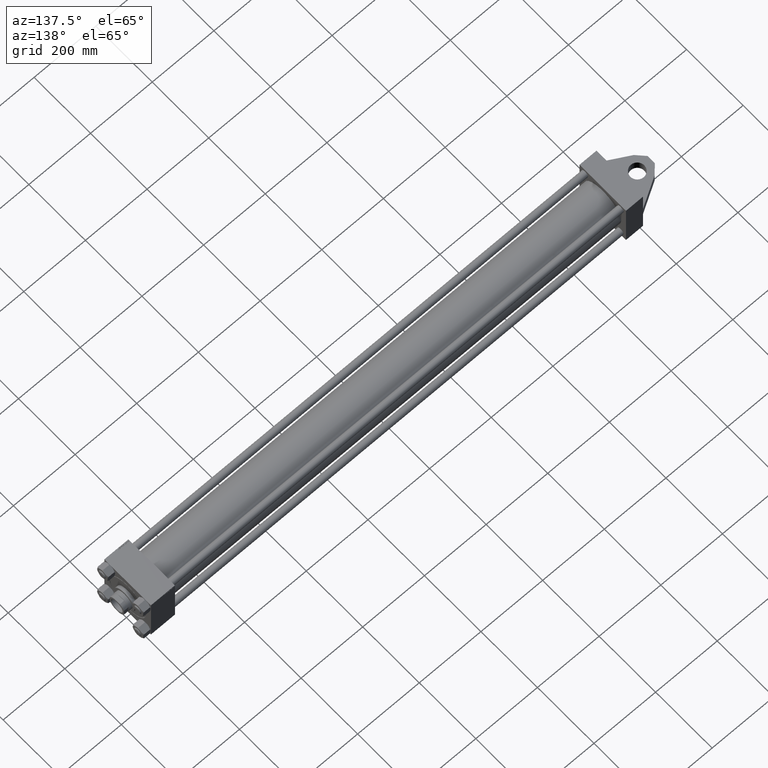
[diagram: clean part render]
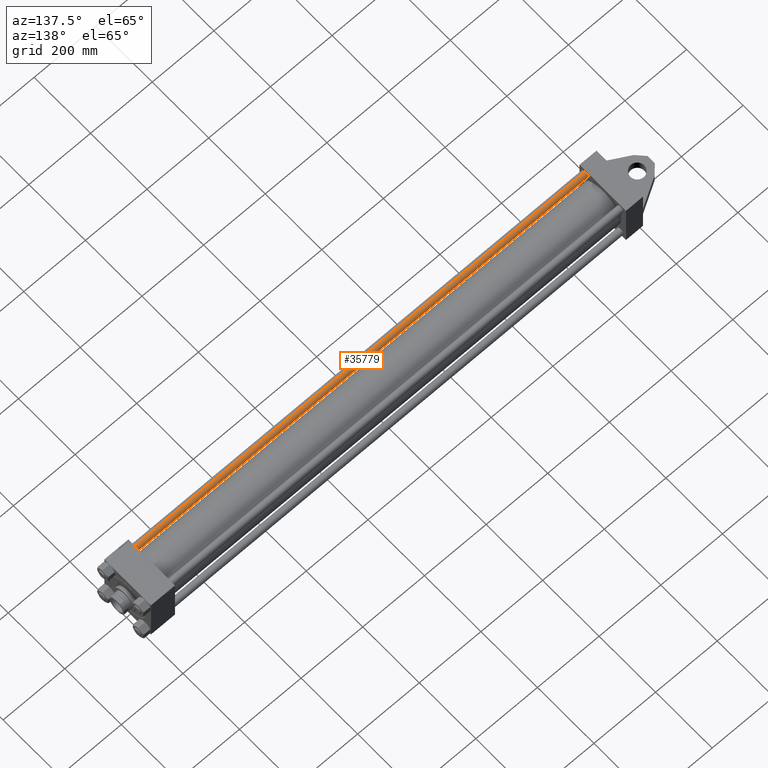
[diagram: same view with one face highlighted and labeled with its STEP entity id]
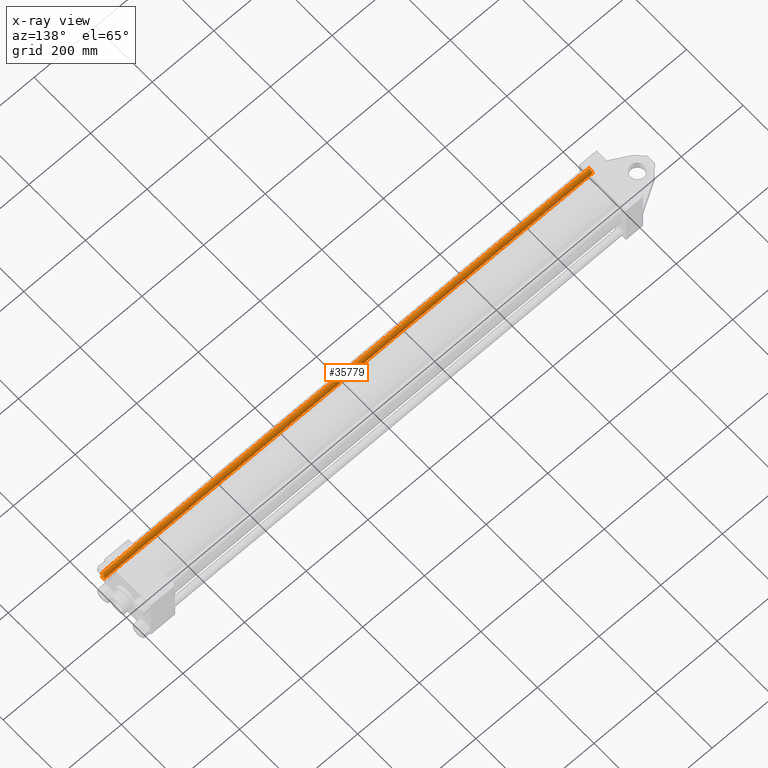
[diagram: x-ray of the same camera — body ghosted, the highlighted face saturated]
A machine part, auxiliary view. The second image highlights one B-rep face of the part: STEP entity #35779.
The next image is the same camera in x-ray: the body ghosted, the highlighted face saturated — about 0% of this face is hidden behind the body in this view.
In plain terms, the highlighted cylindrical surface (edge-blend (fillet) strip) has radius 11 mm, axis along (1, 0, 0).
Its self-contained STEP definition (entity closure, byte-faithful):
#945 = CARTESIAN_POINT ( 'NONE',  ( -11.00000000000000000, 0.000000000000000000, 0.4999999999999449329 ) ) ;
#1276 = EDGE_CURVE ( 'NONE', #24883, #20092, #33771, .T. ) ;
#2498 = CARTESIAN_POINT ( 'NONE',  ( 0.000000000000000000, 0.000000000000000000, 0.4999999999999449329 ) ) ;
#4050 = CARTESIAN_POINT ( 'NONE',  ( -11.00000000000000000, 0.000000000000000000, 1581.500000000000000 ) ) ;
#5768 = ORIENTED_EDGE ( 'NONE', *, *, #15752, .T. ) ;
#7307 = CARTESIAN_POINT ( 'NONE',  ( 0.000000000000000000, 0.000000000000000000, 1582.000000000000000 ) ) ;
#9076 = DIRECTION ( 'NONE',  ( 1.000000000000000000, 0.000000000000000000, 0.000000000000000000 ) ) ;
#13207 = LINE ( 'NONE', #31365, #42779 ) ;
#13489 = CARTESIAN_POINT ( 'NONE',  ( 11.00000000000000000, 1.347111479062088405E-15, 1581.500000000000000 ) ) ;
#14441 = AXIS2_PLACEMENT_3D ( 'NONE', #7307, #25900, #14828 ) ;
#14778 = DIRECTION ( 'NONE',  ( -0.000000000000000000, -0.000000000000000000, -1.000000000000000000 ) ) ;
#14828 = DIRECTION ( 'NONE',  ( -1.000000000000000000, 0.000000000000000000, 0.000000000000000000 ) ) ;
#15752 = EDGE_CURVE ( 'NONE', #31186, #38211, #34913, .T. ) ;
#16864 = DIRECTION ( 'NONE',  ( -0.000000000000000000, -0.000000000000000000, 1.000000000000000000 ) ) ;
#20092 = VERTEX_POINT ( 'NONE', #4050 ) ;
#20223 = AXIS2_PLACEMENT_3D ( 'NONE', #23666, #23430, #9076 ) ;
#20360 = EDGE_CURVE ( 'NONE', #20092, #31186, #35811, .T. ) ;
#20623 = ORIENTED_EDGE ( 'NONE', *, *, #24053, .F. ) ;
#21453 = VECTOR ( 'NONE', #14778, 1000.000000000000000 ) ;
#22691 = EDGE_LOOP ( 'NONE', ( #20623, #24578, #23218, #5768 ) ) ;
#23218 = ORIENTED_EDGE ( 'NONE', *, *, #20360, .T. ) ;
#23430 = DIRECTION ( 'NONE',  ( 0.000000000000000000, 0.000000000000000000, -1.000000000000000000 ) ) ;
#23666 = CARTESIAN_POINT ( 'NONE',  ( 0.000000000000000000, 0.000000000000000000, 1581.500000000000000 ) ) ;
#24053 = EDGE_CURVE ( 'NONE', #24883, #38211, #13207, .T. ) ;
#24578 = ORIENTED_EDGE ( 'NONE', *, *, #1276, .T. ) ;
#24883 = VERTEX_POINT ( 'NONE', #13489 ) ;
#25900 = DIRECTION ( 'NONE',  ( -0.000000000000000000, -0.000000000000000000, -1.000000000000000000 ) ) ;
#27584 = DIRECTION ( 'NONE',  ( -0.000000000000000000, -0.000000000000000000, -1.000000000000000000 ) ) ;
#31186 = VERTEX_POINT ( 'NONE', #945 ) ;
#31256 = DIRECTION ( 'NONE',  ( 1.000000000000000000, 0.000000000000000000, 0.000000000000000000 ) ) ;
#31365 = CARTESIAN_POINT ( 'NONE',  ( 11.00000000000000000, 1.347111479062088405E-15, 1582.000000000000000 ) ) ;
#33771 = CIRCLE ( 'NONE', #20223, 11.00000000000000000 ) ;
#34913 = CIRCLE ( 'NONE', #39397, 11.00000000000000000 ) ;
#35184 = CARTESIAN_POINT ( 'NONE',  ( 11.00000000000000000, 1.347111479062088405E-15, 0.4999999999999449329 ) ) ;
#35779 = ADVANCED_FACE ( 'NONE', ( #39586 ), #36035, .T. ) ;
#35811 = LINE ( 'NONE', #43573, #21453 ) ;
#36035 = CYLINDRICAL_SURFACE ( 'NONE', #14441, 11.00000000000000000 ) ;
#38211 = VERTEX_POINT ( 'NONE', #35184 ) ;
#39397 = AXIS2_PLACEMENT_3D ( 'NONE', #2498, #16864, #31256 ) ;
#39586 = FACE_OUTER_BOUND ( 'NONE', #22691, .T. ) ;
#42779 = VECTOR ( 'NONE', #27584, 1000.000000000000000 ) ;
#43573 = CARTESIAN_POINT ( 'NONE',  ( -11.00000000000000000, 0.000000000000000000, 1582.000000000000000 ) ) ;